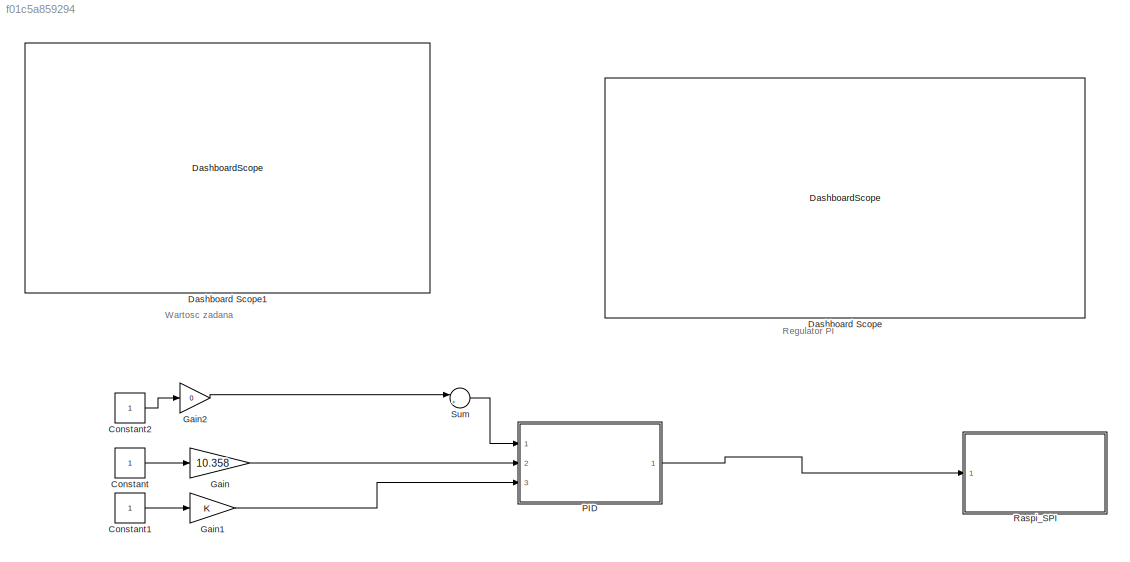
MODEL slx_f01c5a859294
KIND model
CONFIG AbsTol = auto
CONFIG EnableMultiTasking = off
CONFIG FixedStep = auto
CONFIG MaxStep = auto
CONFIG MinStep = auto
CONFIG RelTol = 1e-3
CONFIG SampleTimeConstraint = Unconstrained
CONFIG Solver = VariableStepAuto
CONFIG SolverName = VariableStepAuto
CONFIG StartTime = 0.0
CONFIG StopTime = 10.0
BLOCK [Constant] Constant
BLOCK [Constant] Constant1
BLOCK [Constant] Constant2
BLOCK [DashboardScope] Dashboard Scope
BLOCK [DashboardScope] Dashboard Scope1
BLOCK [Gain] Gain
  Gain = 10.358
  OutDataTypeStr = Inherit: Inherit via internal rule
  ParamDataTypeStr = Inherit: Inherit via internal rule
  SaturateOnIntegerOverflow = off
BLOCK [Gain] Gain1
  OutDataTypeStr = Inherit: Inherit via internal rule
  ParamDataTypeStr = Inherit: Inherit via internal rule
  SaturateOnIntegerOverflow = off
BLOCK [Gain] Gain2
  Gain = 0
  OutDataTypeStr = Inherit: Inherit via internal rule
  ParamDataTypeStr = Inherit: Inherit via internal rule
  SaturateOnIntegerOverflow = off
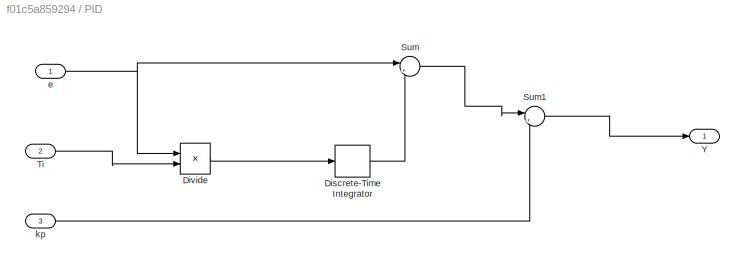
BLOCK [SubSystem] PID
  Ports = [3, 1]
  RequestExecContextInheritance = off
BLOCK [DiscreteIntegrator] PID/Discrete-Time Integrator
  ICPrevOutput = DiscIntNeverNeededParam
  ICPrevScaledInput = DiscIntNeverNeededParam
  InitialConditionSetting = Auto
  Ports = [1, 1]
  SampleTime = 0.01
BLOCK [Product] PID/Divide
  InputSameDT = off
  Inputs = */
  OutDataTypeStr = Inherit: Inherit via internal rule
  Ports = [2, 1]
  RndMeth = Floor
  SaturateOnIntegerOverflow = off
BLOCK [Sum] PID/Sum
  IconShape = round
  InputSameDT = off
  Inputs = |++
  OutDataTypeStr = Inherit: Inherit via internal rule
  Ports = [2, 1]
  SaturateOnIntegerOverflow = off
BLOCK [Sum] PID/Sum1
  IconShape = round
  InputSameDT = off
  Inputs = |++
  OutDataTypeStr = Inherit: Inherit via internal rule
  Ports = [2, 1]
  SaturateOnIntegerOverflow = off
BLOCK [Inport] PID/Ti
  IconDisplay = Port number
  Port = 2
BLOCK [Outport] PID/Y
  IconDisplay = Port number
BLOCK [Inport] PID/e 
  IconDisplay = Port number
BLOCK [Inport] PID/kp
  IconDisplay = Port number
  Port = 3
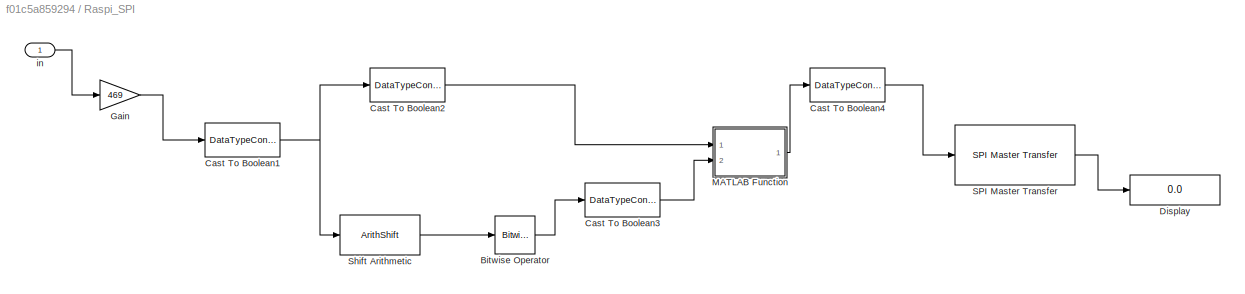
BLOCK [SubSystem] Raspi_SPI
  Ports = [1]
  RequestExecContextInheritance = off
BLOCK [Reference] Raspi_SPI/Bitwise Operator  REF=simulink/Logic and Bit
Operations/Bitwise
Operator
  Ports = [1, 1]
  SourceBlock = simulink/Logic and Bit\nOperations/Bitwise\nOperator
  SourceProductBaseCode = SL
  SourceProductName = Simulink
  SourceType = Bitwise Operator
BLOCK [DataTypeConversion] Raspi_SPI/Cast To Boolean1
  OutDataTypeStr = uint16
  RndMeth = Floor
  SaturateOnIntegerOverflow = off
BLOCK [DataTypeConversion] Raspi_SPI/Cast To Boolean2
  OutDataTypeStr = uint8
  RndMeth = Floor
  SaturateOnIntegerOverflow = off
BLOCK [DataTypeConversion] Raspi_SPI/Cast To Boolean3
  OutDataTypeStr = uint8
  RndMeth = Floor
  SaturateOnIntegerOverflow = off
BLOCK [DataTypeConversion] Raspi_SPI/Cast To Boolean4
  OutDataTypeStr = uint8
  RndMeth = Floor
  SaturateOnIntegerOverflow = off
BLOCK [Display] Raspi_SPI/Display
  Decimation = 1
  Ports = [1]
BLOCK [Gain] Raspi_SPI/Gain
  Gain = 469
  OutDataTypeStr = Inherit: Inherit via internal rule
  ParamDataTypeStr = Inherit: Inherit via internal rule
  SaturateOnIntegerOverflow = off
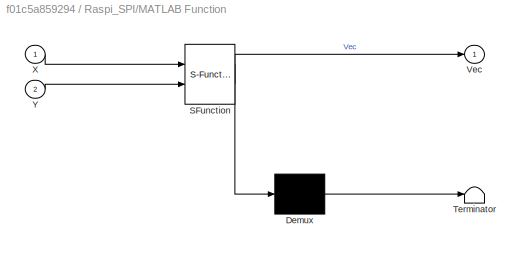
BLOCK [SubSystem] Raspi_SPI/MATLAB Function
  ErrorFcn = Stateflow.Translate.translate
  PermitHierarchicalResolution = ExplicitOnly
  Ports = [2, 1]
  RequestExecContextInheritance = off
  SFBlockType = MATLAB Function
  TreatAsAtomicUnit = on
BLOCK [Demux] Raspi_SPI/MATLAB Function/ Demux 
  Outputs = 1
  Ports = [1, 1]
BLOCK [S-Function] Raspi_SPI/MATLAB Function/ SFunction 
  EnableBusSupport = on
  FunctionName = sf_sfun
  PortCounts = [2 2]
  Ports = [2, 2]
  SFcnIsStateOwnerBlock = off
  SFunctionDeploymentMode = off
  Tag = Stateflow S-Function 2
BLOCK [Terminator] Raspi_SPI/MATLAB Function/ Terminator 
BLOCK [Outport] Raspi_SPI/MATLAB Function/Vec
  IconDisplay = Port number
BLOCK [Inport] Raspi_SPI/MATLAB Function/X
  IconDisplay = Port number
BLOCK [Inport] Raspi_SPI/MATLAB Function/Y
  IconDisplay = Port number
  Port = 2
BLOCK [Reference] Raspi_SPI/SPI Master Transfer  REF=raspberrypilib/SPI Master Transfer
  Ports = [1, 1]
  Priority = 1
  SourceBlock = raspberrypilib/SPI Master Transfer
  SourceProductBaseCode = RASPPI
  SourceProductName = Simulink Support Package for Raspberry Pi Hardware
  SourceType = codertarget.raspi.internal.SPIMasterTransfer
BLOCK [ArithShift] Raspi_SPI/Shift Arithmetic
  BitShiftNumber = 8
  InputPortMap = u0
  Ports = [1, 1]
BLOCK [Inport] Raspi_SPI/in 
  IconDisplay = Port number
BLOCK [Sum] Sum
  IconShape = round
  InputSameDT = off
  Inputs = |+-
  OutDataTypeStr = Inherit: Inherit via internal rule
  Ports = [2, 1]
  SaturateOnIntegerOverflow = off
ANNOTATION (root): Regulator PI
ANNOTATION (root): Wartosc zadana
LINE Constant1:1 -> Gain1:1
LINE Constant2:1 -> Gain2:1
LINE Constant:1 -> Gain:1
LINE Gain1:1 -> PID:3
LINE Gain2:1 -> Sum:1
LINE Gain:1 -> PID:2
LINE PID/Discrete-Time Integrator:1 -> PID/Sum:2
LINE PID/Divide:1 -> PID/Discrete-Time Integrator:1
LINE PID/Sum1:1 -> PID/Y:1
LINE PID/Sum:1 -> PID/Sum1:1
LINE PID/Ti:1 -> PID/Divide:2
NET PID/e :1 -> PID/Divide:1, PID/Sum:1
LINE PID/kp:1 -> PID/Sum1:2
LINE PID:1 -> Raspi_SPI:1
LINE Raspi_SPI/Bitwise Operator:1 -> Raspi_SPI/Cast To Boolean3:1
NET Raspi_SPI/Cast To Boolean1:1 -> Raspi_SPI/Cast To Boolean2:1, Raspi_SPI/Shift Arithmetic:1
LINE Raspi_SPI/Cast To Boolean2:1 -> Raspi_SPI/MATLAB Function:1
LINE Raspi_SPI/Cast To Boolean3:1 -> Raspi_SPI/MATLAB Function:2
LINE Raspi_SPI/Cast To Boolean4:1 -> Raspi_SPI/SPI Master Transfer:1
LINE Raspi_SPI/Gain:1 -> Raspi_SPI/Cast To Boolean1:1
LINE Raspi_SPI/MATLAB Function:1 -> Raspi_SPI/Cast To Boolean4:1
LINE Raspi_SPI/SPI Master Transfer:1 -> Raspi_SPI/Display:1
LINE Raspi_SPI/Shift Arithmetic:1 -> Raspi_SPI/Bitwise Operator:1
LINE Raspi_SPI/in :1 -> Raspi_SPI/Gain:1
LINE Sum:1 -> PID:1
note: NET lines group one-source signal fan-out (src -> all destinations, sorted); 1:1 wires keep LINE
CHART Raspi_SPI/MATLAB Function states=1 transitions=1
  STATE_LABEL 'eML_blk_kernel()'
  STATE_LABEL "SCRIPT:\nfunction Vec = Vector(X, Y)\n\n% myPI = raspi();\nVec = [Y X];\n% mySPI = spidev(myPI,'CE0');\n% out = writeRead(mySPI,[Vec]);"
